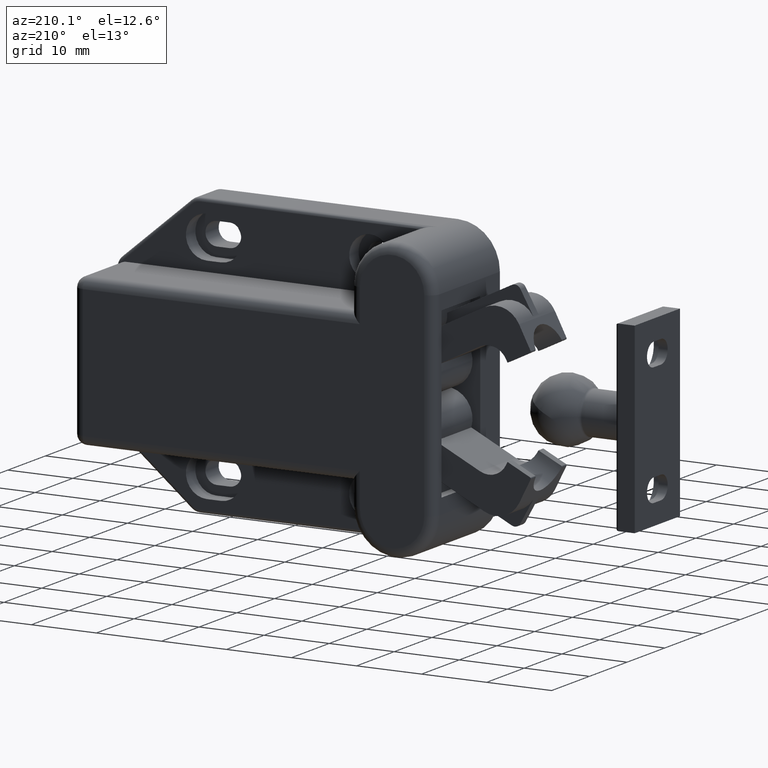
[diagram: clean part render]
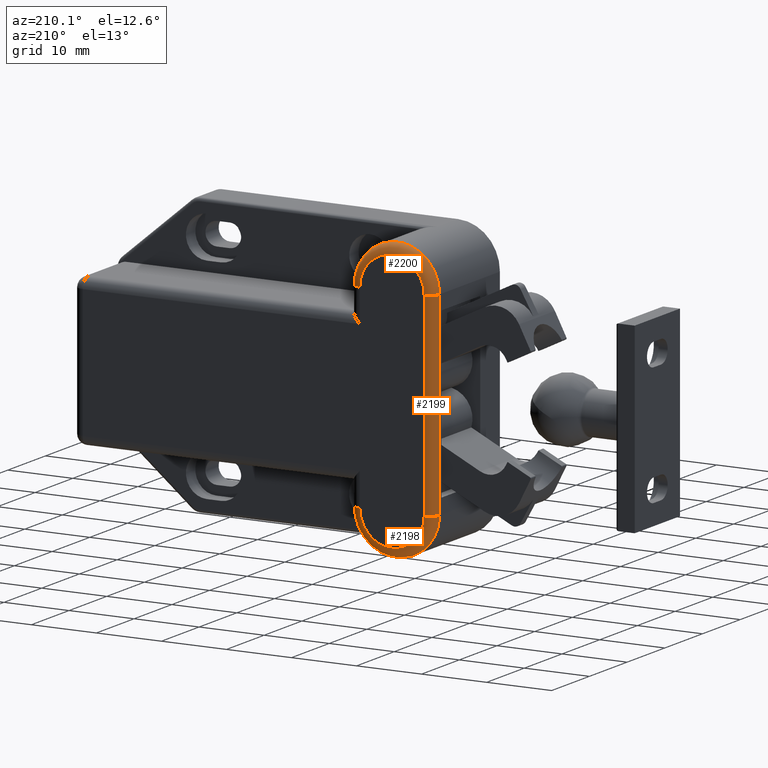
[diagram: same view with one multi-face feature highlighted, each face labeled with its STEP entity id]
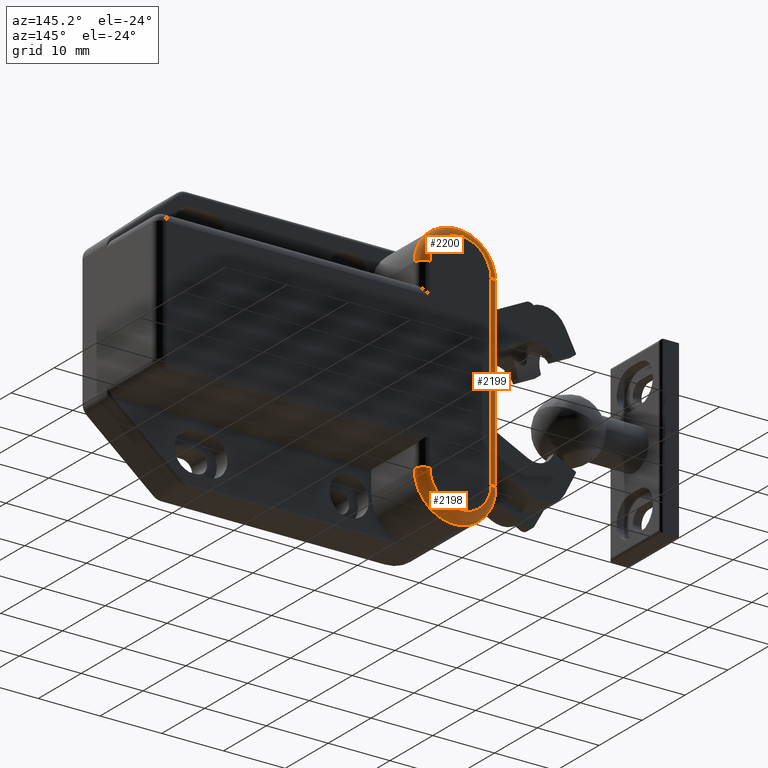
[diagram: same view with one multi-face feature highlighted, each face labeled with its STEP entity id]
A machine part, auxiliary view. The highlighted faces form ONE feature: a constant-radius fillet chain: 3 tangent blend faces with common blend radius 1.5 mm. The faces share edges in the B-rep.
A second angle (auxiliary view) of the same feature is appended — it is thin or edge-on in the first view.
Their STEP definitions:
[1] entity #2199 (Cylinder):
#181=LINE('',#3446,#377);
#182=LINE('',#3447,#378);
#377=VECTOR('',#2710,30.1);
#378=VECTOR('',#2711,30.1);
#556=CYLINDRICAL_SURFACE('',#2366,1.5);
#621=FACE_OUTER_BOUND('',#752,.T.);
#752=EDGE_LOOP('',(#1616,#1617,#1618,#1619));
#913=CIRCLE('',#2363,1.5);
#916=CIRCLE('',#2367,1.5);
#1040=VERTEX_POINT('',#3437);
#1041=VERTEX_POINT('',#3438);
#1042=VERTEX_POINT('',#3443);
#1043=VERTEX_POINT('',#3444);
#1267=EDGE_CURVE('',#1040,#1041,#913,.T.);
#1270=EDGE_CURVE('',#1042,#1043,#916,.T.);
#1271=EDGE_CURVE('',#1043,#1041,#181,.T.);
#1272=EDGE_CURVE('',#1040,#1042,#182,.T.);
#1616=ORIENTED_EDGE('',*,*,#1270,.T.);
#1617=ORIENTED_EDGE('',*,*,#1271,.T.);
#1618=ORIENTED_EDGE('',*,*,#1267,.F.);
#1619=ORIENTED_EDGE('',*,*,#1272,.T.);
#2199=ADVANCED_FACE('',(#621),#556,.T.);
#2363=AXIS2_PLACEMENT_3D('',#3439,#2700,#2701);
#2366=AXIS2_PLACEMENT_3D('',#3442,#2706,#2707);
#2367=AXIS2_PLACEMENT_3D('',#3445,#2708,#2709);
#2700=DIRECTION('center_axis',(1.,0.,0.));
#2701=DIRECTION('ref_axis',(0.,1.,0.));
#2706=DIRECTION('center_axis',(-1.,-1.47537943471782E-16,0.));
#2707=DIRECTION('ref_axis',(0.,0.707106781186548,0.707106781186548));
#2708=DIRECTION('center_axis',(1.,-1.48029736616688E-15,0.));
#2709=DIRECTION('ref_axis',(1.48029736616688E-15,1.,0.));
#2710=DIRECTION('',(1.,1.47537943471782E-16,0.));
#2711=DIRECTION('',(-1.,-1.47537943471782E-16,0.));
#3437=CARTESIAN_POINT('',(15.05,27.75,16.));
#3438=CARTESIAN_POINT('',(15.05,26.25,17.5));
#3439=CARTESIAN_POINT('Origin',(15.05,26.25,16.));
#3442=CARTESIAN_POINT('Origin',(7.5250026791171,26.25,16.));
#3443=CARTESIAN_POINT('',(-15.05,27.75,16.));
#3444=CARTESIAN_POINT('',(-15.05,26.25,17.5));
#3445=CARTESIAN_POINT('Origin',(-15.05,26.25,16.));
#3446=CARTESIAN_POINT('',(7.5250026791171,26.25,17.5));
#3447=CARTESIAN_POINT('',(7.5250026791171,27.75,16.));
[2] entity #2198 (Torus):
#620=FACE_OUTER_BOUND('',#751,.T.);
#751=EDGE_LOOP('',(#1612,#1613,#1614,#1615));
#911=CIRCLE('',#2358,1.5);
#913=CIRCLE('',#2363,1.5);
#914=CIRCLE('',#2364,4.95);
#915=CIRCLE('',#2365,6.45);
#1035=VERTEX_POINT('',#3423);
#1036=VERTEX_POINT('',#3425);
#1040=VERTEX_POINT('',#3437);
#1041=VERTEX_POINT('',#3438);
#1261=EDGE_CURVE('',#1035,#1036,#911,.T.);
#1267=EDGE_CURVE('',#1040,#1041,#913,.T.);
#1268=EDGE_CURVE('',#1041,#1036,#914,.T.);
#1269=EDGE_CURVE('',#1035,#1040,#915,.T.);
#1612=ORIENTED_EDGE('',*,*,#1267,.T.);
#1613=ORIENTED_EDGE('',*,*,#1268,.T.);
#1614=ORIENTED_EDGE('',*,*,#1261,.F.);
#1615=ORIENTED_EDGE('',*,*,#1269,.T.);
#2173=TOROIDAL_SURFACE('',#2362,4.95,1.5);
#2198=ADVANCED_FACE('',(#620),#2173,.T.);
#2358=AXIS2_PLACEMENT_3D('',#3426,#2687,#2688);
#2362=AXIS2_PLACEMENT_3D('',#3436,#2698,#2699);
#2363=AXIS2_PLACEMENT_3D('',#3439,#2700,#2701);
#2364=AXIS2_PLACEMENT_3D('',#3440,#2702,#2703);
#2365=AXIS2_PLACEMENT_3D('',#3441,#2704,#2705);
#2687=DIRECTION('center_axis',(-1.,-1.48029736616688E-15,0.));
#2688=DIRECTION('ref_axis',(1.48029736616688E-15,-1.,0.));
#2698=DIRECTION('center_axis',(0.,0.,1.));
#2699=DIRECTION('ref_axis',(1.,0.,0.));
#2700=DIRECTION('center_axis',(1.,0.,0.));
#2701=DIRECTION('ref_axis',(0.,1.,0.));
#2702=DIRECTION('center_axis',(0.,0.,-1.));
#2703=DIRECTION('ref_axis',(1.,0.,0.));
#2704=DIRECTION('center_axis',(0.,0.,1.));
#2705=DIRECTION('ref_axis',(1.,0.,0.));
#3423=CARTESIAN_POINT('',(15.05,14.85,16.));
#3425=CARTESIAN_POINT('',(15.05,16.35,17.5));
#3426=CARTESIAN_POINT('Origin',(15.05,16.35,16.));
#3436=CARTESIAN_POINT('Origin',(15.05,21.3,16.));
#3437=CARTESIAN_POINT('',(15.05,27.75,16.));
#3438=CARTESIAN_POINT('',(15.05,26.25,17.5));
#3439=CARTESIAN_POINT('Origin',(15.05,26.25,16.));
#3440=CARTESIAN_POINT('Origin',(15.05,21.3,17.5));
#3441=CARTESIAN_POINT('Origin',(15.05,21.3,16.));
[3] entity #2200 (Torus):
#622=FACE_OUTER_BOUND('',#753,.T.);
#753=EDGE_LOOP('',(#1620,#1621,#1622,#1623));
#916=CIRCLE('',#2367,1.5);
#917=CIRCLE('',#2369,1.5);
#918=CIRCLE('',#2370,4.95);
#919=CIRCLE('',#2371,6.45);
#1042=VERTEX_POINT('',#3443);
#1043=VERTEX_POINT('',#3444);
#1044=VERTEX_POINT('',#3449);
#1045=VERTEX_POINT('',#3450);
#1270=EDGE_CURVE('',#1042,#1043,#916,.T.);
#1273=EDGE_CURVE('',#1044,#1045,#917,.T.);
#1274=EDGE_CURVE('',#1045,#1043,#918,.T.);
#1275=EDGE_CURVE('',#1042,#1044,#919,.T.);
#1620=ORIENTED_EDGE('',*,*,#1273,.T.);
#1621=ORIENTED_EDGE('',*,*,#1274,.T.);
#1622=ORIENTED_EDGE('',*,*,#1270,.F.);
#1623=ORIENTED_EDGE('',*,*,#1275,.T.);
#2174=TOROIDAL_SURFACE('',#2368,4.95,1.5);
#2200=ADVANCED_FACE('',(#622),#2174,.T.);
#2367=AXIS2_PLACEMENT_3D('',#3445,#2708,#2709);
#2368=AXIS2_PLACEMENT_3D('',#3448,#2712,#2713);
#2369=AXIS2_PLACEMENT_3D('',#3451,#2714,#2715);
#2370=AXIS2_PLACEMENT_3D('',#3452,#2716,#2717);
#2371=AXIS2_PLACEMENT_3D('',#3453,#2718,#2719);
#2708=DIRECTION('center_axis',(1.,-1.48029736616688E-15,0.));
#2709=DIRECTION('ref_axis',(1.48029736616688E-15,1.,0.));
#2712=DIRECTION('center_axis',(0.,0.,1.));
#2713=DIRECTION('ref_axis',(1.,0.,0.));
#2714=DIRECTION('center_axis',(-1.,0.,0.));
#2715=DIRECTION('ref_axis',(0.,-1.,0.));
#2716=DIRECTION('center_axis',(0.,0.,-1.));
#2717=DIRECTION('ref_axis',(-1.,0.,0.));
#2718=DIRECTION('center_axis',(0.,0.,1.));
#2719=DIRECTION('ref_axis',(-1.,0.,0.));
#3443=CARTESIAN_POINT('',(-15.05,27.75,16.));
#3444=CARTESIAN_POINT('',(-15.05,26.25,17.5));
#3445=CARTESIAN_POINT('Origin',(-15.05,26.25,16.));
#3448=CARTESIAN_POINT('Origin',(-15.05,21.3,16.));
#3449=CARTESIAN_POINT('',(-15.05,14.85,16.));
#3450=CARTESIAN_POINT('',(-15.05,16.35,17.5));
#3451=CARTESIAN_POINT('Origin',(-15.05,16.35,16.));
#3452=CARTESIAN_POINT('Origin',(-15.05,21.3,17.5));
#3453=CARTESIAN_POINT('Origin',(-15.05,21.3,16.));